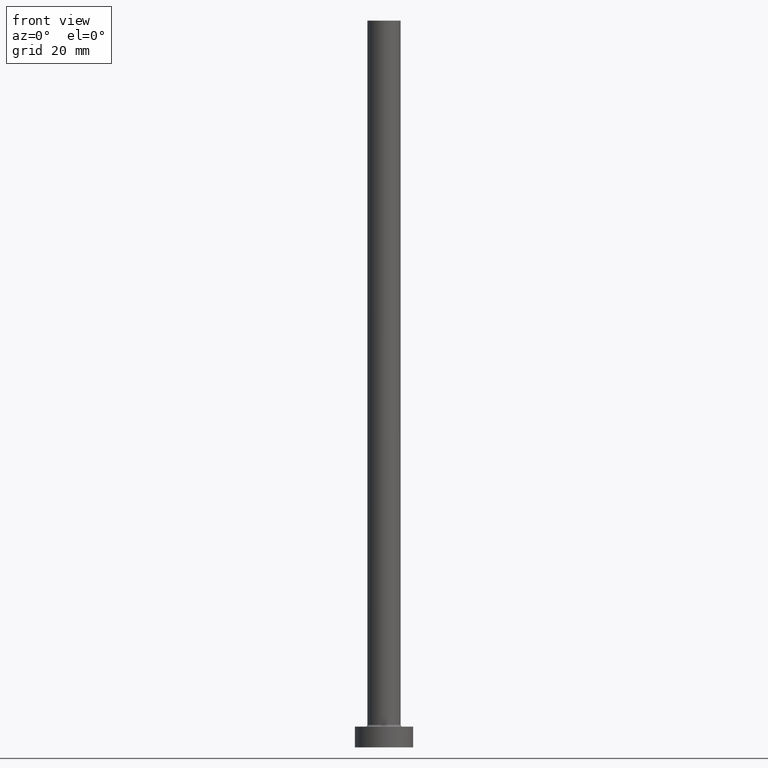
[diagram: clean part render]
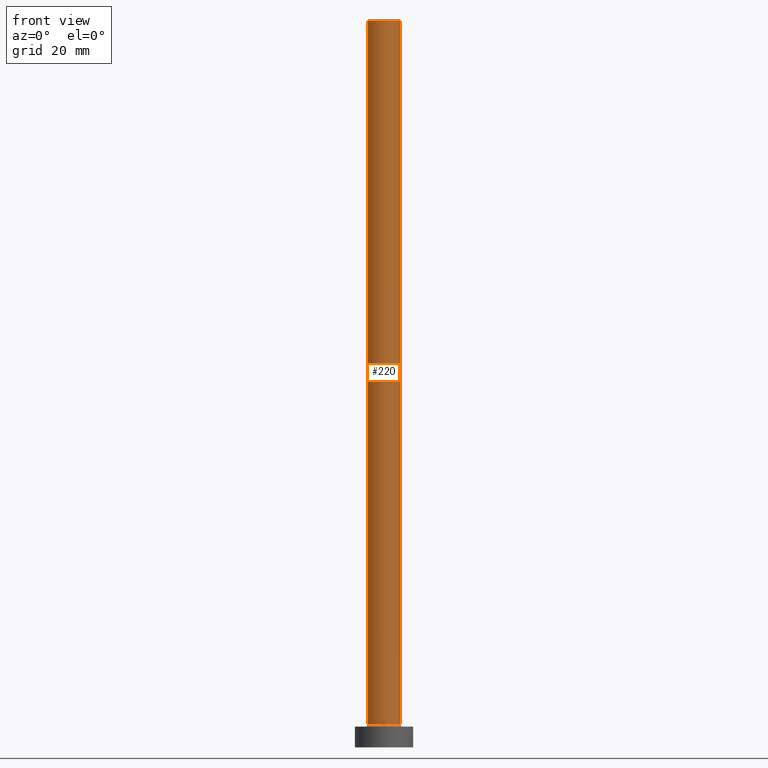
[diagram: same view with one face highlighted and labeled with its STEP entity id]
A machine part, front view. The second image highlights one B-rep face of the part: STEP entity #220.
In plain terms, the highlighted cylindrical surface (edge-blend (fillet) strip) has radius 4 mm, axis along (-0, -0, -1).
Its self-contained STEP definition (entity closure, byte-faithful):
#2 = CARTESIAN_POINT ( 'NONE',  ( 0.000000000000000000, 0.000000000000000000, 5.500000000000005329 ) ) ;
#10 = EDGE_LOOP ( 'NONE', ( #318, #421, #92, #408 ) ) ;
#28 = AXIS2_PLACEMENT_3D ( 'NONE', #2, #433, #74 ) ;
#52 = CARTESIAN_POINT ( 'NONE',  ( 4.000000000000000000, 4.898587196589412829E-16, 175.0000000000000284 ) ) ;
#64 = CARTESIAN_POINT ( 'NONE',  ( -4.000000000000000000, 0.000000000000000000, 175.0000000000000284 ) ) ;
#71 = DIRECTION ( 'NONE',  ( -1.000000000000000000, 0.000000000000000000, 0.000000000000000000 ) ) ;
#73 = CIRCLE ( 'NONE', #196, 4.000000000000000000 ) ;
#74 = DIRECTION ( 'NONE',  ( 1.000000000000000000, 0.000000000000000000, 0.000000000000000000 ) ) ;
#90 = LINE ( 'NONE', #375, #104 ) ;
#92 = ORIENTED_EDGE ( 'NONE', *, *, #306, .T. ) ;
#98 = DIRECTION ( 'NONE',  ( -0.000000000000000000, -0.000000000000000000, -1.000000000000000000 ) ) ;
#99 = CARTESIAN_POINT ( 'NONE',  ( 0.000000000000000000, 0.000000000000000000, 175.0000000000000284 ) ) ;
#104 = VECTOR ( 'NONE', #230, 1000.000000000000000 ) ;
#119 = CIRCLE ( 'NONE', #28, 4.000000000000000000 ) ;
#124 = CYLINDRICAL_SURFACE ( 'NONE', #149, 4.000000000000000000 ) ;
#127 = EDGE_CURVE ( 'NONE', #178, #165, #90, .T. ) ;
#129 = DIRECTION ( 'NONE',  ( 1.000000000000000000, 0.000000000000000000, 0.000000000000000000 ) ) ;
#149 = AXIS2_PLACEMENT_3D ( 'NONE', #267, #417, #71 ) ;
#165 = VERTEX_POINT ( 'NONE', #384 ) ;
#174 = DIRECTION ( 'NONE',  ( 0.000000000000000000, 0.000000000000000000, 1.000000000000000000 ) ) ;
#178 = VERTEX_POINT ( 'NONE', #52 ) ;
#187 = VECTOR ( 'NONE', #98, 1000.000000000000000 ) ;
#196 = AXIS2_PLACEMENT_3D ( 'NONE', #99, #174, #129 ) ;
#220 = ADVANCED_FACE ( 'NONE', ( #451 ), #124, .T. ) ;
#222 = VERTEX_POINT ( 'NONE', #276 ) ;
#230 = DIRECTION ( 'NONE',  ( -0.000000000000000000, -0.000000000000000000, -1.000000000000000000 ) ) ;
#237 = LINE ( 'NONE', #64, #187 ) ;
#267 = CARTESIAN_POINT ( 'NONE',  ( 0.000000000000000000, 0.000000000000000000, 175.0000000000000284 ) ) ;
#276 = CARTESIAN_POINT ( 'NONE',  ( -4.000000000000000000, 0.000000000000000000, 5.500000000000005329 ) ) ;
#289 = EDGE_CURVE ( 'NONE', #222, #165, #119, .T. ) ;
#296 = VERTEX_POINT ( 'NONE', #427 ) ;
#306 = EDGE_CURVE ( 'NONE', #296, #222, #237, .T. ) ;
#318 = ORIENTED_EDGE ( 'NONE', *, *, #127, .F. ) ;
#375 = CARTESIAN_POINT ( 'NONE',  ( 4.000000000000000000, 4.898587196589412829E-16, 175.0000000000000284 ) ) ;
#384 = CARTESIAN_POINT ( 'NONE',  ( 4.000000000000000000, 4.898587196589412829E-16, 5.500000000000005329 ) ) ;
#408 = ORIENTED_EDGE ( 'NONE', *, *, #289, .T. ) ;
#417 = DIRECTION ( 'NONE',  ( -0.000000000000000000, -0.000000000000000000, -1.000000000000000000 ) ) ;
#421 = ORIENTED_EDGE ( 'NONE', *, *, #453, .F. ) ;
#427 = CARTESIAN_POINT ( 'NONE',  ( -4.000000000000000000, 0.000000000000000000, 175.0000000000000284 ) ) ;
#433 = DIRECTION ( 'NONE',  ( 0.000000000000000000, 0.000000000000000000, 1.000000000000000000 ) ) ;
#451 = FACE_OUTER_BOUND ( 'NONE', #10, .T. ) ;
#453 = EDGE_CURVE ( 'NONE', #296, #178, #73, .T. ) ;